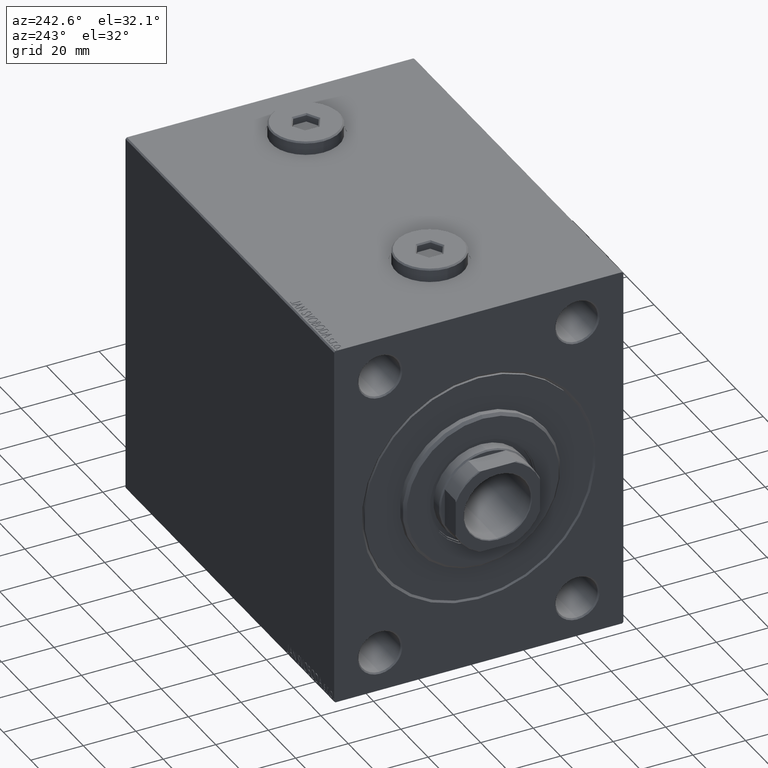
[diagram: clean part render]
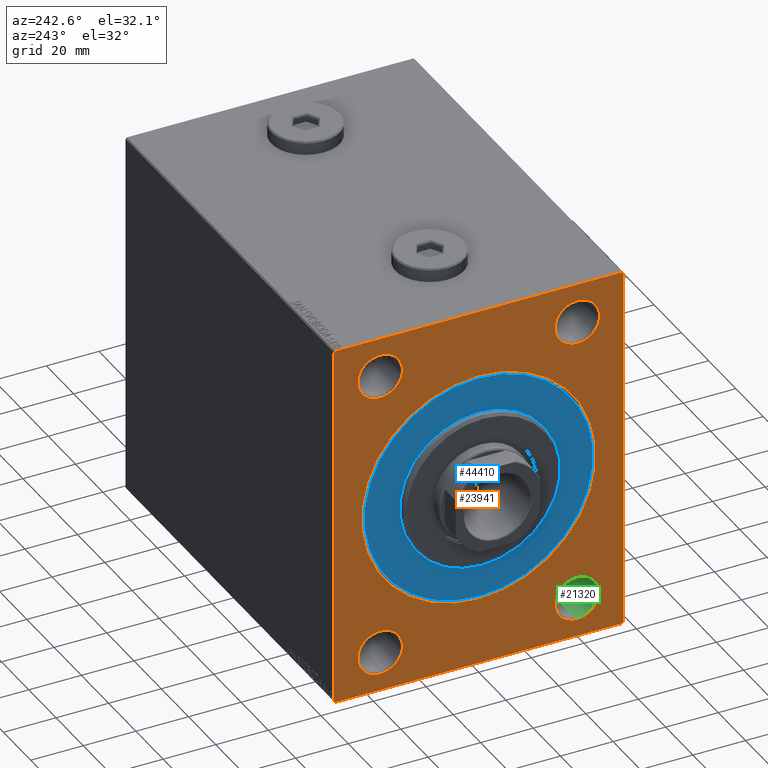
[diagram: same view with three faces highlighted in distinct colors, each labeled with its STEP entity id]
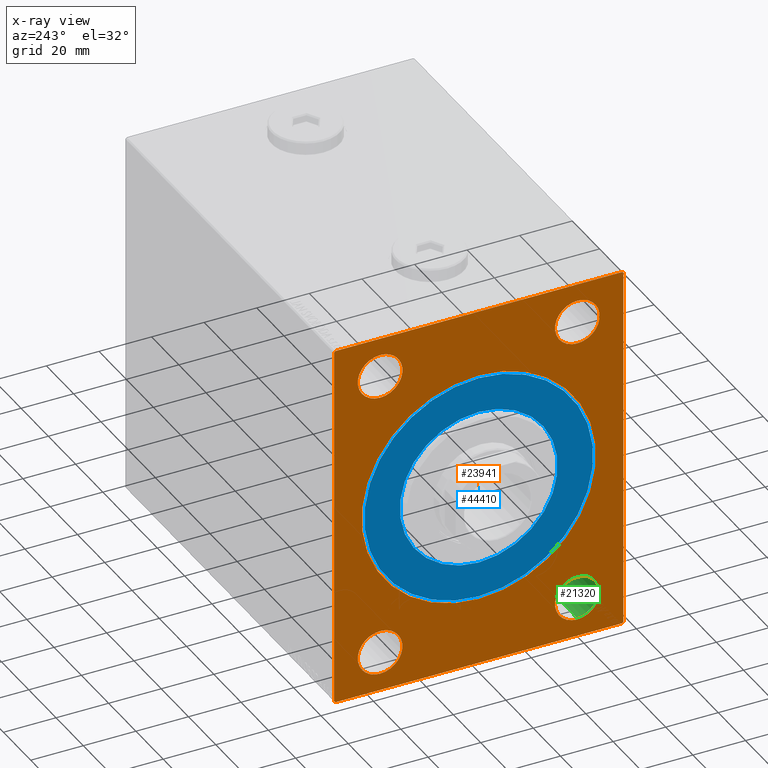
[diagram: x-ray of the same camera — body ghosted, the three highlighted faces saturated]
A machine part, auxiliary view with three faces highlighted in distinct colors.
The next image is the same camera in x-ray (body ghosted, the three faces saturated) — at least one of them is partly hidden behind the body in this view.
Their STEP definitions:

[orange] entity #23941 — the highlighted planar face has unit normal (1, 0, 0).
#95 = DIRECTION ( 'NONE',  ( 1.000000000000000000, 0.000000000000000000, 0.000000000000000000 ) ) ;
#782 = CARTESIAN_POINT ( 'NONE',  ( 0.000000000000000000, -55.00000000000000000, 69.50000000000002842 ) ) ;
#843 = EDGE_CURVE ( 'NONE', #31267, #29781, #42575, .T. ) ;
#901 = DIRECTION ( 'NONE',  ( 1.000000000000000000, 0.000000000000000000, 0.000000000000000000 ) ) ;
#1439 = CARTESIAN_POINT ( 'NONE',  ( 0.000000000000000000, -37.49999999999999289, -46.49999999999992895 ) ) ;
#1442 = CARTESIAN_POINT ( 'NONE',  ( 0.000000000000000000, 37.50000000000000000, -54.99999999999999289 ) ) ;
#1674 = EDGE_LOOP ( 'NONE', ( #16298, #9085, #1723, #9724, #35724, #15680, #31959, #44583 ) ) ;
#1723 = ORIENTED_EDGE ( 'NONE', *, *, #16460, .F. ) ;
#1913 = EDGE_LOOP ( 'NONE', ( #39199, #32500 ) ) ;
#2573 = VERTEX_POINT ( 'NONE', #7163 ) ;
#2867 = EDGE_CURVE ( 'NONE', #31134, #15575, #21660, .T. ) ;
#3218 = ORIENTED_EDGE ( 'NONE', *, *, #33345, .T. ) ;
#4188 = CARTESIAN_POINT ( 'NONE',  ( 0.000000000000000000, 37.50000000000000000, -63.50000000000005684 ) ) ;
#4202 = DIRECTION ( 'NONE',  ( 0.000000000000000000, 0.000000000000000000, -1.000000000000000000 ) ) ;
#4211 = CIRCLE ( 'NONE', #42628, 44.50000000000004263 ) ;
#4266 = CARTESIAN_POINT ( 'NONE',  ( 0.000000000000000000, -37.49999999999999289, 55.00000000000000711 ) ) ;
#4280 = CARTESIAN_POINT ( 'NONE',  ( 0.000000000000000000, 54.99999999999999289, 69.50000000000004263 ) ) ;
#4436 = DIRECTION ( 'NONE',  ( 1.000000000000000000, 0.000000000000000000, 0.000000000000000000 ) ) ;
#4705 = DIRECTION ( 'NONE',  ( 0.000000000000000000, 1.000000000000000000, 1.261617073437677752E-16 ) ) ;
#4745 = CARTESIAN_POINT ( 'NONE',  ( 0.000000000000000000, 54.99999999999999289, 70.00000000000001421 ) ) ;
#5189 = DIRECTION ( 'NONE',  ( 1.000000000000000000, 0.000000000000000000, 0.000000000000000000 ) ) ;
#5219 = LINE ( 'NONE', #12127, #43424 ) ;
#6309 = DIRECTION ( 'NONE',  ( 1.000000000000000000, 0.000000000000000000, 0.000000000000000000 ) ) ;
#7163 = CARTESIAN_POINT ( 'NONE',  ( 0.000000000000000000, 5.449678256205726715E-15, -44.50000000000004263 ) ) ;
#7697 = EDGE_CURVE ( 'NONE', #16201, #43921, #35503, .T. ) ;
#8252 = CARTESIAN_POINT ( 'NONE',  ( 0.000000000000000000, 0.000000000000000000, 44.50000000000004263 ) ) ;
#8286 = DIRECTION ( 'NONE',  ( 0.000000000000000000, 0.000000000000000000, -1.000000000000000000 ) ) ;
#8361 = CARTESIAN_POINT ( 'NONE',  ( 0.000000000000000000, -37.49999999999999289, 63.50000000000007105 ) ) ;
#8772 = VECTOR ( 'NONE', #4705, 1000.000000000000000 ) ;
#9085 = ORIENTED_EDGE ( 'NONE', *, *, #45303, .T. ) ;
#9288 = CARTESIAN_POINT ( 'NONE',  ( 0.000000000000000000, -37.49999999999999289, 46.49999999999994316 ) ) ;
#9716 = EDGE_CURVE ( 'NONE', #12171, #42052, #36593, .T. ) ;
#9724 = ORIENTED_EDGE ( 'NONE', *, *, #2867, .T. ) ;
#9916 = VECTOR ( 'NONE', #11814, 1000.000000000000000 ) ;
#10229 = EDGE_CURVE ( 'NONE', #23774, #2573, #24028, .T. ) ;
#11019 = DIRECTION ( 'NONE',  ( -0.000000000000000000, 0.7071067811865474617, -0.7071067811865474617 ) ) ;
#11472 = CARTESIAN_POINT ( 'NONE',  ( 0.000000000000000000, 54.50000000000002132, 70.00000000000001421 ) ) ;
#11629 = EDGE_LOOP ( 'NONE', ( #17267, #27649 ) ) ;
#11653 = VECTOR ( 'NONE', #44049, 1000.000000000000000 ) ;
#11760 = VECTOR ( 'NONE', #15188, 1000.000000000000000 ) ;
#11814 = DIRECTION ( 'NONE',  ( 0.000000000000000000, -0.7071067811865426878, -0.7071067811865524577 ) ) ;
#12127 = CARTESIAN_POINT ( 'NONE',  ( 0.000000000000000000, 55.00000000000000711, -69.99999999999998579 ) ) ;
#12171 = VERTEX_POINT ( 'NONE', #1439 ) ;
#12595 = CARTESIAN_POINT ( 'NONE',  ( 0.000000000000000000, 37.50000000000000000, 63.50000000000007105 ) ) ;
#13970 = EDGE_CURVE ( 'NONE', #2573, #23774, #4211, .T. ) ;
#14314 = EDGE_CURVE ( 'NONE', #19390, #30136, #16061, .T. ) ;
#15035 = ORIENTED_EDGE ( 'NONE', *, *, #43610, .T. ) ;
#15188 = DIRECTION ( 'NONE',  ( -0.000000000000000000, 0.7071067811865524577, 0.7071067811865426878 ) ) ;
#15575 = VERTEX_POINT ( 'NONE', #4280 ) ;
#15651 = LINE ( 'NONE', #40159, #11760 ) ;
#15680 = ORIENTED_EDGE ( 'NONE', *, *, #33317, .T. ) ;
#16061 = CIRCLE ( 'NONE', #21233, 8.500000000000063949 ) ;
#16196 = DIRECTION ( 'NONE',  ( 1.000000000000000000, 0.000000000000000000, 0.000000000000000000 ) ) ;
#16201 = VERTEX_POINT ( 'NONE', #22415 ) ;
#16298 = ORIENTED_EDGE ( 'NONE', *, *, #18518, .F. ) ;
#16410 = CARTESIAN_POINT ( 'NONE',  ( 0.000000000000000000, 37.50000000000000000, 46.49999999999994316 ) ) ;
#16460 = EDGE_CURVE ( 'NONE', #31134, #19013, #22077, .T. ) ;
#16469 = EDGE_CURVE ( 'NONE', #22003, #15575, #5219, .T. ) ;
#17166 = DIRECTION ( 'NONE',  ( 0.000000000000000000, 0.000000000000000000, -1.000000000000000000 ) ) ;
#17240 = VECTOR ( 'NONE', #11019, 1000.000000000000114 ) ;
#17267 = ORIENTED_EDGE ( 'NONE', *, *, #10229, .T. ) ;
#17289 = EDGE_CURVE ( 'NONE', #16201, #24133, #39844, .T. ) ;
#17306 = AXIS2_PLACEMENT_3D ( 'NONE', #1442, #4436, #4202 ) ;
#17678 = FACE_BOUND ( 'NONE', #27374, .T. ) ;
#18272 = CARTESIAN_POINT ( 'NONE',  ( 0.000000000000000000, 54.50000000000002132, 70.00000000000001421 ) ) ;
#18518 = EDGE_CURVE ( 'NONE', #42173, #43921, #25438, .T. ) ;
#18909 = DIRECTION ( 'NONE',  ( 1.000000000000000000, 0.000000000000000000, 0.000000000000000000 ) ) ;
#19013 = VERTEX_POINT ( 'NONE', #30004 ) ;
#19085 = CARTESIAN_POINT ( 'NONE',  ( 0.000000000000000000, 55.00000000000000711, -69.50000000000001421 ) ) ;
#19275 = DIRECTION ( 'NONE',  ( 0.000000000000000000, 0.000000000000000000, -1.000000000000000000 ) ) ;
#19390 = VERTEX_POINT ( 'NONE', #8361 ) ;
#19577 = ORIENTED_EDGE ( 'NONE', *, *, #41149, .T. ) ;
#19858 = CARTESIAN_POINT ( 'NONE',  ( 0.000000000000000000, 37.50000000000000000, -46.49999999999992895 ) ) ;
#19939 = VERTEX_POINT ( 'NONE', #19858 ) ;
#21145 = DIRECTION ( 'NONE',  ( 1.000000000000000000, 0.000000000000000000, 0.000000000000000000 ) ) ;
#21233 = AXIS2_PLACEMENT_3D ( 'NONE', #35088, #34869, #28594 ) ;
#21333 = VECTOR ( 'NONE', #36554, 1000.000000000000000 ) ;
#21341 = CIRCLE ( 'NONE', #23545, 8.500000000000063949 ) ;
#21601 = FACE_BOUND ( 'NONE', #11629, .T. ) ;
#21612 = CARTESIAN_POINT ( 'NONE',  ( 0.000000000000000000, -54.50000000000000000, -70.00000000000000000 ) ) ;
#21660 = LINE ( 'NONE', #11472, #17240 ) ;
#21824 = CARTESIAN_POINT ( 'NONE',  ( 0.000000000000000000, 0.000000000000000000, 0.000000000000000000 ) ) ;
#21917 = CARTESIAN_POINT ( 'NONE',  ( 0.000000000000000000, -37.49999999999999289, -54.99999999999999289 ) ) ;
#22003 = VERTEX_POINT ( 'NONE', #19085 ) ;
#22077 = LINE ( 'NONE', #4745, #11653 ) ;
#22305 = DIRECTION ( 'NONE',  ( 0.000000000000000000, -9.912705577010325549E-17, 1.000000000000000000 ) ) ;
#22415 = CARTESIAN_POINT ( 'NONE',  ( 0.000000000000000000, -54.50000000000000000, -70.00000000000000000 ) ) ;
#22685 = CARTESIAN_POINT ( 'NONE',  ( 0.000000000000000000, -55.00000000000000000, 70.00000000000000000 ) ) ;
#22961 = CARTESIAN_POINT ( 'NONE',  ( 0.000000000000000000, -55.00000000000000000, -70.00000000000000000 ) ) ;
#22995 = ORIENTED_EDGE ( 'NONE', *, *, #9716, .T. ) ;
#23545 = AXIS2_PLACEMENT_3D ( 'NONE', #36774, #32446, #35466 ) ;
#23731 = AXIS2_PLACEMENT_3D ( 'NONE', #44923, #6309, #17166 ) ;
#23774 = VERTEX_POINT ( 'NONE', #8252 ) ;
#23941 = ADVANCED_FACE ( 'NONE', ( #21601, #17678, #28986, #24829, #45667, #35940 ), #24604, .F. ) ;
#23962 = EDGE_CURVE ( 'NONE', #30136, #19390, #41333, .T. ) ;
#24028 = CIRCLE ( 'NONE', #35860, 44.50000000000004263 ) ;
#24133 = VERTEX_POINT ( 'NONE', #29682 ) ;
#24604 = PLANE ( 'NONE',  #33955 ) ;
#24829 = FACE_BOUND ( 'NONE', #32835, .T. ) ;
#24957 = AXIS2_PLACEMENT_3D ( 'NONE', #21917, #18909, #8286 ) ;
#25011 = DIRECTION ( 'NONE',  ( 0.000000000000000000, 0.000000000000000000, -1.000000000000000000 ) ) ;
#25282 = DIRECTION ( 'NONE',  ( 1.000000000000000000, 0.000000000000000000, 0.000000000000000000 ) ) ;
#25438 = LINE ( 'NONE', #22685, #21333 ) ;
#25681 = CIRCLE ( 'NONE', #24957, 8.500000000000063949 ) ;
#26672 = CIRCLE ( 'NONE', #23731, 8.500000000000063949 ) ;
#27374 = EDGE_LOOP ( 'NONE', ( #22995, #19577 ) ) ;
#27649 = ORIENTED_EDGE ( 'NONE', *, *, #13970, .T. ) ;
#27729 = AXIS2_PLACEMENT_3D ( 'NONE', #34227, #16196, #37691 ) ;
#28369 = EDGE_CURVE ( 'NONE', #29781, #31267, #26672, .T. ) ;
#28594 = DIRECTION ( 'NONE',  ( 0.000000000000000000, 0.000000000000000000, -1.000000000000000000 ) ) ;
#28609 = CARTESIAN_POINT ( 'NONE',  ( 0.000000000000000000, 37.50000000000000000, 55.00000000000000711 ) ) ;
#28986 = FACE_BOUND ( 'NONE', #1913, .T. ) ;
#29682 = CARTESIAN_POINT ( 'NONE',  ( 0.000000000000000000, 54.50000000000004263, -69.99999999999998579 ) ) ;
#29781 = VERTEX_POINT ( 'NONE', #12595 ) ;
#30004 = CARTESIAN_POINT ( 'NONE',  ( 0.000000000000000000, -54.50000000000002132, 70.00000000000000000 ) ) ;
#30136 = VERTEX_POINT ( 'NONE', #9288 ) ;
#31134 = VERTEX_POINT ( 'NONE', #18272 ) ;
#31267 = VERTEX_POINT ( 'NONE', #16410 ) ;
#31959 = ORIENTED_EDGE ( 'NONE', *, *, #17289, .F. ) ;
#32246 = DIRECTION ( 'NONE',  ( -0.000000000000000000, -0.7071067811865474617, 0.7071067811865474617 ) ) ;
#32446 = DIRECTION ( 'NONE',  ( 1.000000000000000000, 0.000000000000000000, 0.000000000000000000 ) ) ;
#32500 = ORIENTED_EDGE ( 'NONE', *, *, #23962, .T. ) ;
#32550 = DIRECTION ( 'NONE',  ( 0.000000000000000000, 0.000000000000000000, -1.000000000000000000 ) ) ;
#32835 = EDGE_LOOP ( 'NONE', ( #35526, #41380 ) ) ;
#33317 = EDGE_CURVE ( 'NONE', #22003, #24133, #39337, .T. ) ;
#33345 = EDGE_CURVE ( 'NONE', #35784, #19939, #41664, .T. ) ;
#33593 = EDGE_LOOP ( 'NONE', ( #15035, #3218 ) ) ;
#33955 = AXIS2_PLACEMENT_3D ( 'NONE', #21824, #25282, #38501 ) ;
#34227 = CARTESIAN_POINT ( 'NONE',  ( 0.000000000000000000, -37.49999999999999289, -54.99999999999999289 ) ) ;
#34869 = DIRECTION ( 'NONE',  ( 1.000000000000000000, 0.000000000000000000, 0.000000000000000000 ) ) ;
#34897 = CARTESIAN_POINT ( 'NONE',  ( 0.000000000000000000, -55.00000000000000000, -69.50000000000000000 ) ) ;
#35088 = CARTESIAN_POINT ( 'NONE',  ( 0.000000000000000000, -37.49999999999999289, 55.00000000000000711 ) ) ;
#35432 = AXIS2_PLACEMENT_3D ( 'NONE', #4266, #21145, #38720 ) ;
#35466 = DIRECTION ( 'NONE',  ( 0.000000000000000000, 0.000000000000000000, -1.000000000000000000 ) ) ;
#35503 = LINE ( 'NONE', #21612, #37310 ) ;
#35526 = ORIENTED_EDGE ( 'NONE', *, *, #28369, .T. ) ;
#35724 = ORIENTED_EDGE ( 'NONE', *, *, #16469, .F. ) ;
#35784 = VERTEX_POINT ( 'NONE', #4188 ) ;
#35860 = AXIS2_PLACEMENT_3D ( 'NONE', #36615, #5189, #19275 ) ;
#35940 = FACE_OUTER_BOUND ( 'NONE', #1674, .T. ) ;
#36107 = CARTESIAN_POINT ( 'NONE',  ( 0.000000000000000000, 55.00000000000000711, -69.50000000000001421 ) ) ;
#36554 = DIRECTION ( 'NONE',  ( 0.000000000000000000, 0.000000000000000000, -1.000000000000000000 ) ) ;
#36593 = CIRCLE ( 'NONE', #27729, 8.500000000000063949 ) ;
#36615 = CARTESIAN_POINT ( 'NONE',  ( 0.000000000000000000, 0.000000000000000000, 0.000000000000000000 ) ) ;
#36677 = AXIS2_PLACEMENT_3D ( 'NONE', #28609, #901, #32550 ) ;
#36774 = CARTESIAN_POINT ( 'NONE',  ( 0.000000000000000000, 37.50000000000000000, -54.99999999999999289 ) ) ;
#37310 = VECTOR ( 'NONE', #32246, 1000.000000000000114 ) ;
#37691 = DIRECTION ( 'NONE',  ( 0.000000000000000000, 0.000000000000000000, -1.000000000000000000 ) ) ;
#38461 = CARTESIAN_POINT ( 'NONE',  ( 0.000000000000000000, -37.49999999999999289, -63.50000000000005684 ) ) ;
#38501 = DIRECTION ( 'NONE',  ( 0.000000000000000000, 0.000000000000000000, -1.000000000000000000 ) ) ;
#38720 = DIRECTION ( 'NONE',  ( 0.000000000000000000, 0.000000000000000000, -1.000000000000000000 ) ) ;
#39199 = ORIENTED_EDGE ( 'NONE', *, *, #14314, .T. ) ;
#39337 = LINE ( 'NONE', #36107, #9916 ) ;
#39844 = LINE ( 'NONE', #22961, #8772 ) ;
#40159 = CARTESIAN_POINT ( 'NONE',  ( 0.000000000000000000, -55.00000000000000000, 69.50000000000002842 ) ) ;
#41149 = EDGE_CURVE ( 'NONE', #42052, #12171, #25681, .T. ) ;
#41333 = CIRCLE ( 'NONE', #35432, 8.500000000000063949 ) ;
#41380 = ORIENTED_EDGE ( 'NONE', *, *, #843, .T. ) ;
#41664 = CIRCLE ( 'NONE', #17306, 8.500000000000063949 ) ;
#42052 = VERTEX_POINT ( 'NONE', #38461 ) ;
#42173 = VERTEX_POINT ( 'NONE', #782 ) ;
#42575 = CIRCLE ( 'NONE', #36677, 8.500000000000063949 ) ;
#42601 = CARTESIAN_POINT ( 'NONE',  ( 0.000000000000000000, 0.000000000000000000, 0.000000000000000000 ) ) ;
#42628 = AXIS2_PLACEMENT_3D ( 'NONE', #42601, #95, #25011 ) ;
#43424 = VECTOR ( 'NONE', #22305, 1000.000000000000000 ) ;
#43610 = EDGE_CURVE ( 'NONE', #19939, #35784, #21341, .T. ) ;
#43921 = VERTEX_POINT ( 'NONE', #34897 ) ;
#44049 = DIRECTION ( 'NONE',  ( 0.000000000000000000, -1.000000000000000000, -1.261617073437677999E-16 ) ) ;
#44583 = ORIENTED_EDGE ( 'NONE', *, *, #7697, .T. ) ;
#44923 = CARTESIAN_POINT ( 'NONE',  ( 0.000000000000000000, 37.50000000000000000, 55.00000000000000711 ) ) ;
#45303 = EDGE_CURVE ( 'NONE', #42173, #19013, #15651, .T. ) ;
#45667 = FACE_BOUND ( 'NONE', #33593, .T. ) ;

[blue] entity #44410 — the highlighted planar face has unit normal (1, -0, -0).
#1575 = VERTEX_POINT ( 'NONE', #31942 ) ;
#2915 = DIRECTION ( 'NONE',  ( 1.000000000000000000, -0.000000000000000000, 0.000000000000000000 ) ) ;
#4284 = CIRCLE ( 'NONE', #16807, 43.50000000000000000 ) ;
#4583 = DIRECTION ( 'NONE',  ( -1.000000000000000000, 0.000000000000000000, 0.000000000000000000 ) ) ;
#4703 = DIRECTION ( 'NONE',  ( -1.000000000000000000, 0.000000000000000000, 0.000000000000000000 ) ) ;
#6349 = DIRECTION ( 'NONE',  ( -1.000000000000000000, 0.000000000000000000, 0.000000000000000000 ) ) ;
#6616 = CARTESIAN_POINT ( 'NONE',  ( 0.000000000000000000, 0.000000000000000000, -43.50000000000000000 ) ) ;
#6883 = CARTESIAN_POINT ( 'NONE',  ( 0.000000000000000000, 3.673940397442059178E-15, -30.00000000000000000 ) ) ;
#7472 = CIRCLE ( 'NONE', #19289, 30.00000000000000000 ) ;
#7584 = VERTEX_POINT ( 'NONE', #6616 ) ;
#8037 = CARTESIAN_POINT ( 'NONE',  ( 0.000000000000000000, 0.000000000000000000, 0.000000000000000000 ) ) ;
#8282 = DIRECTION ( 'NONE',  ( 0.000000000000000000, 0.000000000000000000, -1.000000000000000000 ) ) ;
#8630 = EDGE_LOOP ( 'NONE', ( #18027, #24529 ) ) ;
#9017 = EDGE_CURVE ( 'NONE', #12319, #7584, #14399, .T. ) ;
#9417 = CIRCLE ( 'NONE', #27870, 30.00000000000000000 ) ;
#10242 = AXIS2_PLACEMENT_3D ( 'NONE', #18564, #4703, #24810 ) ;
#12196 = AXIS2_PLACEMENT_3D ( 'NONE', #41716, #6349, #44732 ) ;
#12319 = VERTEX_POINT ( 'NONE', #24935 ) ;
#12794 = ORIENTED_EDGE ( 'NONE', *, *, #9017, .F. ) ;
#14399 = CIRCLE ( 'NONE', #12196, 43.50000000000000000 ) ;
#14871 = FACE_OUTER_BOUND ( 'NONE', #25426, .T. ) ;
#16807 = AXIS2_PLACEMENT_3D ( 'NONE', #8037, #4583, #21455 ) ;
#18027 = ORIENTED_EDGE ( 'NONE', *, *, #40450, .F. ) ;
#18564 = CARTESIAN_POINT ( 'NONE',  ( 0.000000000000000000, 0.000000000000000000, 0.000000000000000000 ) ) ;
#19289 = AXIS2_PLACEMENT_3D ( 'NONE', #34812, #2915, #44981 ) ;
#21455 = DIRECTION ( 'NONE',  ( 0.000000000000000000, 0.000000000000000000, 1.000000000000000000 ) ) ;
#24529 = ORIENTED_EDGE ( 'NONE', *, *, #28004, .F. ) ;
#24810 = DIRECTION ( 'NONE',  ( 0.000000000000000000, 0.000000000000000000, 1.000000000000000000 ) ) ;
#24935 = CARTESIAN_POINT ( 'NONE',  ( 0.000000000000000000, 5.327213576290986044E-15, 43.50000000000000000 ) ) ;
#25426 = EDGE_LOOP ( 'NONE', ( #29619, #12794 ) ) ;
#27870 = AXIS2_PLACEMENT_3D ( 'NONE', #39261, #42962, #8282 ) ;
#28004 = EDGE_CURVE ( 'NONE', #37455, #1575, #7472, .T. ) ;
#29619 = ORIENTED_EDGE ( 'NONE', *, *, #41887, .F. ) ;
#31942 = CARTESIAN_POINT ( 'NONE',  ( 0.000000000000000000, 0.000000000000000000, 30.00000000000000000 ) ) ;
#32905 = FACE_BOUND ( 'NONE', #8630, .T. ) ;
#34812 = CARTESIAN_POINT ( 'NONE',  ( 0.000000000000000000, 0.000000000000000000, 0.000000000000000000 ) ) ;
#37455 = VERTEX_POINT ( 'NONE', #6883 ) ;
#39155 = PLANE ( 'NONE',  #10242 ) ;
#39261 = CARTESIAN_POINT ( 'NONE',  ( 0.000000000000000000, 0.000000000000000000, 0.000000000000000000 ) ) ;
#40450 = EDGE_CURVE ( 'NONE', #1575, #37455, #9417, .T. ) ;
#41716 = CARTESIAN_POINT ( 'NONE',  ( 0.000000000000000000, 0.000000000000000000, 0.000000000000000000 ) ) ;
#41887 = EDGE_CURVE ( 'NONE', #7584, #12319, #4284, .T. ) ;
#42962 = DIRECTION ( 'NONE',  ( 1.000000000000000000, -0.000000000000000000, 0.000000000000000000 ) ) ;
#44410 = ADVANCED_FACE ( 'NONE', ( #32905, #14871 ), #39155, .F. ) ;
#44732 = DIRECTION ( 'NONE',  ( 0.000000000000000000, 0.000000000000000000, 1.000000000000000000 ) ) ;
#44981 = DIRECTION ( 'NONE',  ( 0.000000000000000000, 0.000000000000000000, -1.000000000000000000 ) ) ;

[green] entity #21320 — the highlighted cylindrical surface (edge-blend (fillet) strip) has radius 8 mm, axis along (-1, -0, -0).
#409 = CIRCLE ( 'NONE', #12915, 7.999999999999992895 ) ;
#2905 = AXIS2_PLACEMENT_3D ( 'NONE', #43616, #5681, #19098 ) ;
#3630 = AXIS2_PLACEMENT_3D ( 'NONE', #27538, #41426, #41880 ) ;
#3664 = ORIENTED_EDGE ( 'NONE', *, *, #25170, .F. ) ;
#4781 = ORIENTED_EDGE ( 'NONE', *, *, #34090, .F. ) ;
#5681 = DIRECTION ( 'NONE',  ( -1.000000000000000000, 0.000000000000000000, 0.000000000000000000 ) ) ;
#5924 = VECTOR ( 'NONE', #28482, 1000.000000000000000 ) ;
#6188 = CARTESIAN_POINT ( 'NONE',  ( 0.5000000000000403011, -37.49999999999999289, -62.99999999999998579 ) ) ;
#9965 = CYLINDRICAL_SURFACE ( 'NONE', #3630, 7.999999999999992895 ) ;
#12475 = VERTEX_POINT ( 'NONE', #6188 ) ;
#12915 = AXIS2_PLACEMENT_3D ( 'NONE', #27795, #38664, #18063 ) ;
#13212 = FACE_OUTER_BOUND ( 'NONE', #25525, .T. ) ;
#14844 = CARTESIAN_POINT ( 'NONE',  ( 0.000000000000000000, -37.49999999999999289, -47.00000000000000000 ) ) ;
#17824 = EDGE_CURVE ( 'NONE', #12475, #32956, #27956, .T. ) ;
#18063 = DIRECTION ( 'NONE',  ( 0.000000000000000000, 0.000000000000000000, 1.000000000000000000 ) ) ;
#18515 = VECTOR ( 'NONE', #30236, 1000.000000000000000 ) ;
#19098 = DIRECTION ( 'NONE',  ( 0.000000000000000000, 0.000000000000000000, -1.000000000000000000 ) ) ;
#21320 = ADVANCED_FACE ( 'NONE', ( #13212 ), #9965, .F. ) ;
#22254 = VERTEX_POINT ( 'NONE', #34108 ) ;
#24009 = CARTESIAN_POINT ( 'NONE',  ( 30.00000000000000000, -37.49999999999999289, -47.00000000000000000 ) ) ;
#25170 = EDGE_CURVE ( 'NONE', #35166, #32956, #42831, .T. ) ;
#25525 = EDGE_LOOP ( 'NONE', ( #4781, #44349, #37967, #3664 ) ) ;
#26314 = CARTESIAN_POINT ( 'NONE',  ( 0.000000000000000000, -37.49999999999999289, -62.99999999999998579 ) ) ;
#27538 = CARTESIAN_POINT ( 'NONE',  ( 0.000000000000000000, -37.49999999999999289, -54.99999999999999289 ) ) ;
#27618 = EDGE_CURVE ( 'NONE', #22254, #12475, #40881, .T. ) ;
#27795 = CARTESIAN_POINT ( 'NONE',  ( 30.00000000000000000, -37.49999999999999289, -54.99999999999999289 ) ) ;
#27956 = CIRCLE ( 'NONE', #2905, 7.999999999999992895 ) ;
#28482 = DIRECTION ( 'NONE',  ( -1.000000000000000000, -0.000000000000000000, -0.000000000000000000 ) ) ;
#30236 = DIRECTION ( 'NONE',  ( -1.000000000000000000, -0.000000000000000000, -0.000000000000000000 ) ) ;
#32956 = VERTEX_POINT ( 'NONE', #43091 ) ;
#34090 = EDGE_CURVE ( 'NONE', #22254, #35166, #409, .T. ) ;
#34108 = CARTESIAN_POINT ( 'NONE',  ( 30.00000000000000000, -37.49999999999999289, -62.99999999999998579 ) ) ;
#35166 = VERTEX_POINT ( 'NONE', #24009 ) ;
#37967 = ORIENTED_EDGE ( 'NONE', *, *, #17824, .T. ) ;
#38664 = DIRECTION ( 'NONE',  ( -1.000000000000000000, -0.000000000000000000, -0.000000000000000000 ) ) ;
#40881 = LINE ( 'NONE', #26314, #18515 ) ;
#41426 = DIRECTION ( 'NONE',  ( -1.000000000000000000, -0.000000000000000000, -0.000000000000000000 ) ) ;
#41880 = DIRECTION ( 'NONE',  ( 0.000000000000000000, 0.000000000000000000, 1.000000000000000000 ) ) ;
#42831 = LINE ( 'NONE', #14844, #5924 ) ;
#43091 = CARTESIAN_POINT ( 'NONE',  ( 0.5000000000000403011, -37.49999999999999289, -47.00000000000000000 ) ) ;
#43616 = CARTESIAN_POINT ( 'NONE',  ( 0.5000000000000403011, -37.49999999999999289, -54.99999999999999289 ) ) ;
#44349 = ORIENTED_EDGE ( 'NONE', *, *, #27618, .T. ) ;